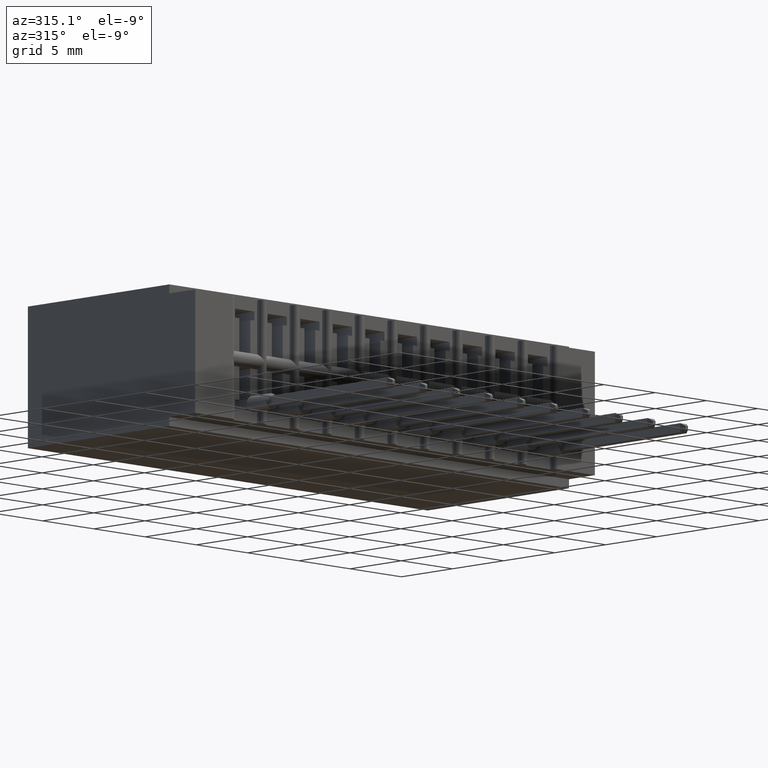
[diagram: clean part render]
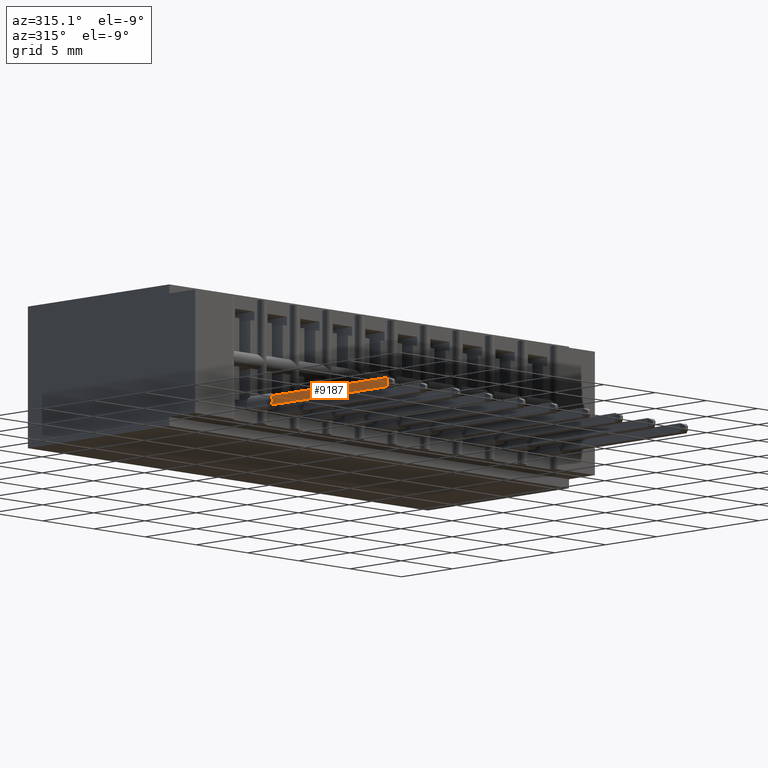
[diagram: same view with one face highlighted and labeled with its STEP entity id]
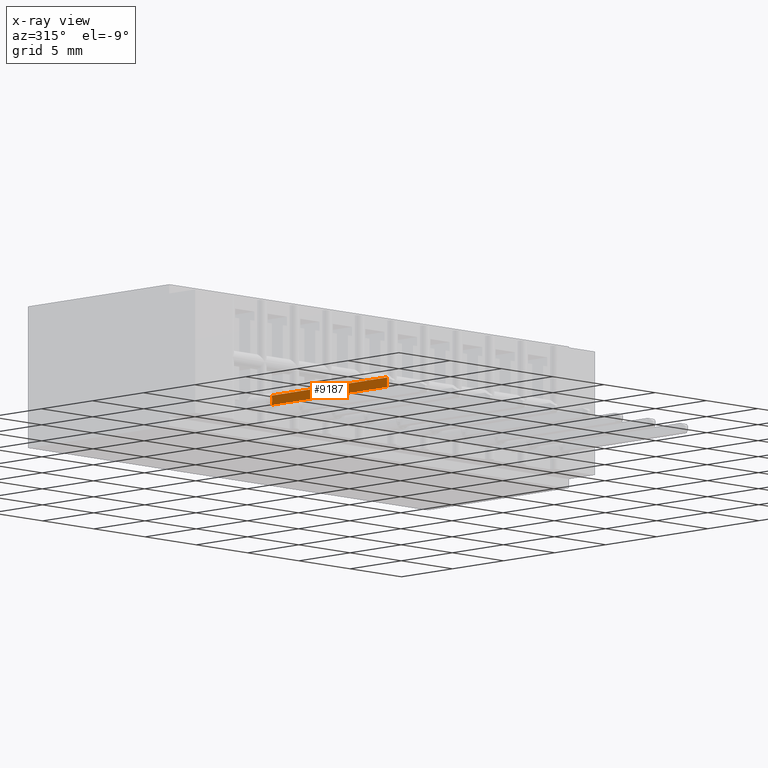
[diagram: x-ray of the same camera — body ghosted, the highlighted face saturated]
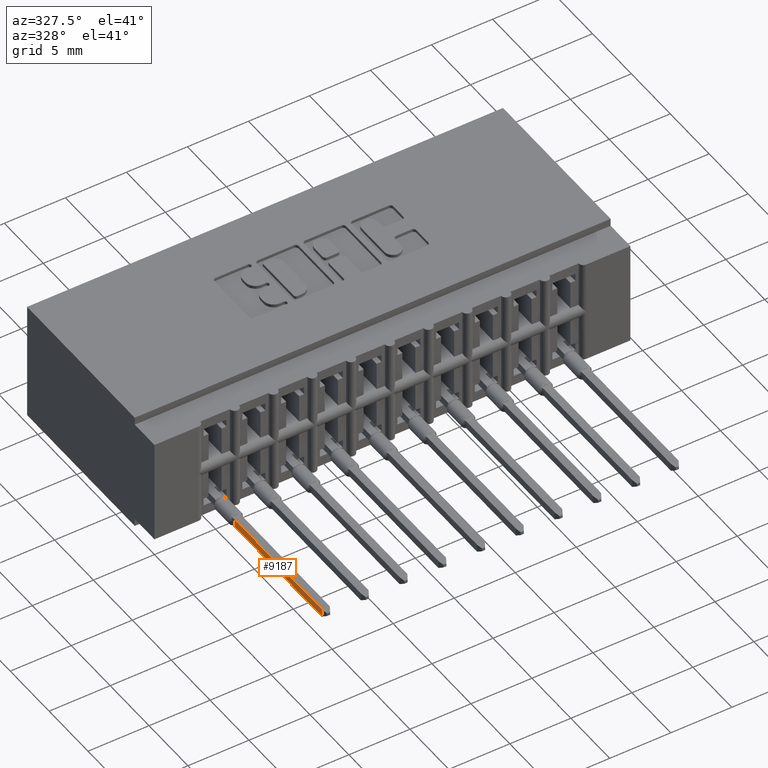
[diagram: same view with one face highlighted and labeled with its STEP entity id]
A machine part, auxiliary view. The second image highlights one B-rep face of the part: STEP entity #9187.
The next image is the same camera in x-ray: the body ghosted, the highlighted face saturated — about 0% of this face is hidden behind the body in this view.
A second angle (auxiliary view) of the same face is appended — the face is thin or edge-on in the first view.
In plain terms, the highlighted planar face has unit normal (1, 0, -0).
Its self-contained STEP definition (entity closure, byte-faithful):
#124 = CARTESIAN_POINT ( 'NONE',  ( -0.01249999999998571178, 0.004150127097895684597, 0.09002594241611698578 ) ) ;
#291 = CARTESIAN_POINT ( 'NONE',  ( -0.01249999999999938834, 0.01249999999999836485, 0.08836055168419625072 ) ) ;
#723 = FACE_OUTER_BOUND ( 'NONE', #16483, .T. ) ;
#1141 = B_SPLINE_CURVE_WITH_KNOTS ( 'NONE', 3,
 ( #13063, #10190, #19108, #5496 ),
 .UNSPECIFIED., .F., .F.,
 ( 4, 4 ),
 ( 0.0000000000000000000, 5.378547845699813607E-06 ),
 .UNSPECIFIED. ) ;
#1587 = CARTESIAN_POINT ( 'NONE',  ( -0.01249999999999884190, 0.01249999999999652084, 0.5332500000000008900 ) ) ;
#1830 = VECTOR ( 'NONE', #12329, 39.37007874015748143 ) ;
#1842 = CARTESIAN_POINT ( 'NONE',  ( -0.01249999999998484095, -0.01243288147389068517, 0.08838239869009886784 ) ) ;
#2569 = ORIENTED_EDGE ( 'NONE', *, *, #9015, .T. ) ;
#2725 = CARTESIAN_POINT ( 'NONE',  ( -0.01249999999998429451, -0.01250000000001407277, 0.5332500000000008900 ) ) ;
#2920 = DIRECTION ( 'NONE',  ( -4.140668800727213506E-16, 1.000000000000000000, -1.865092718480003685E-22 ) ) ;
#3420 = CARTESIAN_POINT ( 'NONE',  ( -0.01249999999999938834, 0.01229837387625506290, 0.08842525562642235271 ) ) ;
#3814 = VECTOR ( 'NONE', #5621, 39.37007874015748143 ) ;
#3981 = ORIENTED_EDGE ( 'NONE', *, *, #15888, .T. ) ;
#4545 = CARTESIAN_POINT ( 'NONE',  ( -0.01249999999998484095, -0.01236567113202571670, 0.08840396554475880853 ) ) ;
#5132 = CARTESIAN_POINT ( 'NONE',  ( -0.01249999999999938834, 0.01229837387625506290, 0.08842525562642235271 ) ) ;
#5295 = PLANE ( 'NONE',  #9795 ) ;
#5496 = CARTESIAN_POINT ( 'NONE',  ( -0.01249999999999938834, 0.01229837387625506290, 0.08842525562642235271 ) ) ;
#5621 = DIRECTION ( 'NONE',  ( -1.716185564623518102E-15, 1.865092717986983722E-22, -1.000000000000000000 ) ) ;
#6541 = ORIENTED_EDGE ( 'NONE', *, *, #14155, .T. ) ;
#6798 = DIRECTION ( 'NONE',  ( 1.000000000000000000, -4.140668800727215972E-16, -1.716185564623518102E-15 ) ) ;
#6961 = VECTOR ( 'NONE', #2920, 39.37007874015748143 ) ;
#7001 = B_SPLINE_CURVE_WITH_KNOTS ( 'NONE', 3,
 ( #15476, #4545, #1842, #12507 ),
 .UNSPECIFIED., .F., .F.,
 ( 4, 4 ),
 ( 0.0000000000000000000, 5.378547845699731444E-06 ),
 .UNSPECIFIED. ) ;
#8007 = CARTESIAN_POINT ( 'NONE',  ( -0.01249999999999938487, 0.008313449736777186669, 0.08968592159806976216 ) ) ;
#8885 = VERTEX_POINT ( 'NONE', #2725 ) ;
#9015 = EDGE_CURVE ( 'NONE', #15324, #14207, #9647, .T. ) ;
#9187 = ADVANCED_FACE ( 'NONE', ( #723 ), #5295, .F. ) ;
#9460 = ORIENTED_EDGE ( 'NONE', *, *, #9932, .T. ) ;
#9647 = B_SPLINE_CURVE_WITH_KNOTS ( 'NONE', 3,
 ( #3420, #8007, #124, #15353, #18618, #11092 ),
 .UNSPECIFIED., .F., .F.,
 ( 4, 2, 4 ),
 ( 0.0000000000000000000, 0.0003155136235155826026, 0.0006310272470311652053 ),
 .UNSPECIFIED. ) ;
#9795 = AXIS2_PLACEMENT_3D ( 'NONE', #16037, #6798, #11379 ) ;
#9932 = EDGE_CURVE ( 'NONE', #14207, #17871, #7001, .T. ) ;
#10014 = LINE ( 'NONE', #10115, #3814 ) ;
#10115 = CARTESIAN_POINT ( 'NONE',  ( -0.01249999999998484095, -0.01249999999999064706, 0.1332499999999996743 ) ) ;
#10190 = CARTESIAN_POINT ( 'NONE',  ( -0.01249999999999938834, 0.01243288147389768998, 0.08838239869009843763 ) ) ;
#10279 = CARTESIAN_POINT ( 'NONE',  ( -0.01249999999998484095, -0.01229837387624256421, 0.08842525562642197801 ) ) ;
#10288 = LINE ( 'NONE', #13266, #6961 ) ;
#10857 = LINE ( 'NONE', #14127, #1830 ) ;
#11092 = CARTESIAN_POINT ( 'NONE',  ( -0.01249999999998484095, -0.01229837387624256421, 0.08842525562642197801 ) ) ;
#11379 = DIRECTION ( 'NONE',  ( -1.716185564623518102E-15, 1.865092717986983722E-22, -1.000000000000000000 ) ) ;
#12329 = DIRECTION ( 'NONE',  ( -1.716185564623518102E-15, 1.865092717986983722E-22, -1.000000000000000000 ) ) ;
#12507 = CARTESIAN_POINT ( 'NONE',  ( -0.01249999999998484095, -0.01249999999999371926, 0.08836055168419587602 ) ) ;
#12527 = VERTEX_POINT ( 'NONE', #291 ) ;
#13063 = CARTESIAN_POINT ( 'NONE',  ( -0.01249999999999938834, 0.01249999999999836485, 0.08836055168419625072 ) ) ;
#13266 = CARTESIAN_POINT ( 'NONE',  ( -0.01249999999999884190, 0.01249999999999652084, 0.5332500000000008900 ) ) ;
#14127 = CARTESIAN_POINT ( 'NONE',  ( -0.01249999999999856955, 0.01249999999999836485, 0.1332500000000000073 ) ) ;
#14155 = EDGE_CURVE ( 'NONE', #12527, #15324, #1141, .T. ) ;
#14207 = VERTEX_POINT ( 'NONE', #10279 ) ;
#15324 = VERTEX_POINT ( 'NONE', #5132 ) ;
#15353 = CARTESIAN_POINT ( 'NONE',  ( -0.01249999999998571178, -0.004177977873777595670, 0.09002401275995540464 ) ) ;
#15476 = CARTESIAN_POINT ( 'NONE',  ( -0.01249999999998484095, -0.01229837387624256421, 0.08842525562642197801 ) ) ;
#15730 = ORIENTED_EDGE ( 'NONE', *, *, #17870, .F. ) ;
#15888 = EDGE_CURVE ( 'NONE', #17285, #12527, #10857, .T. ) ;
#16037 = CARTESIAN_POINT ( 'NONE',  ( -0.01249999999998484095, -0.01249999999999064706, 0.1332499999999996743 ) ) ;
#16483 = EDGE_LOOP ( 'NONE', ( #15730, #17327, #3981, #6541, #2569, #9460 ) ) ;
#17046 = EDGE_CURVE ( 'NONE', #8885, #17285, #10288, .T. ) ;
#17285 = VERTEX_POINT ( 'NONE', #1587 ) ;
#17327 = ORIENTED_EDGE ( 'NONE', *, *, #17046, .T. ) ;
#17870 = EDGE_CURVE ( 'NONE', #8885, #17871, #10014, .T. ) ;
#17871 = VERTEX_POINT ( 'NONE', #19436 ) ;
#18618 = CARTESIAN_POINT ( 'NONE',  ( -0.01249999999998484441, -0.008298781898345753555, 0.08969056189838285620 ) ) ;
#19108 = CARTESIAN_POINT ( 'NONE',  ( -0.01249999999999938834, 0.01236567113203256886, 0.08840396554474977409 ) ) ;
#19436 = CARTESIAN_POINT ( 'NONE',  ( -0.01249999999998484095, -0.01249999999999371926, 0.08836055168419587602 ) ) ;